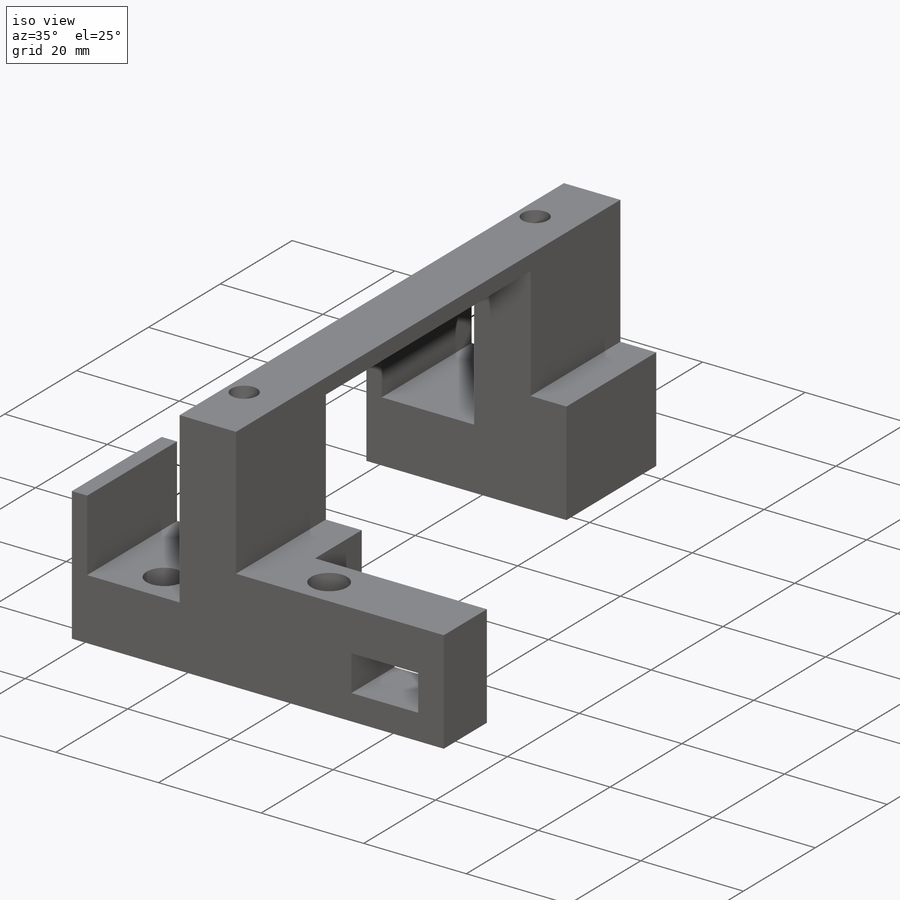
[diagram: iso view]
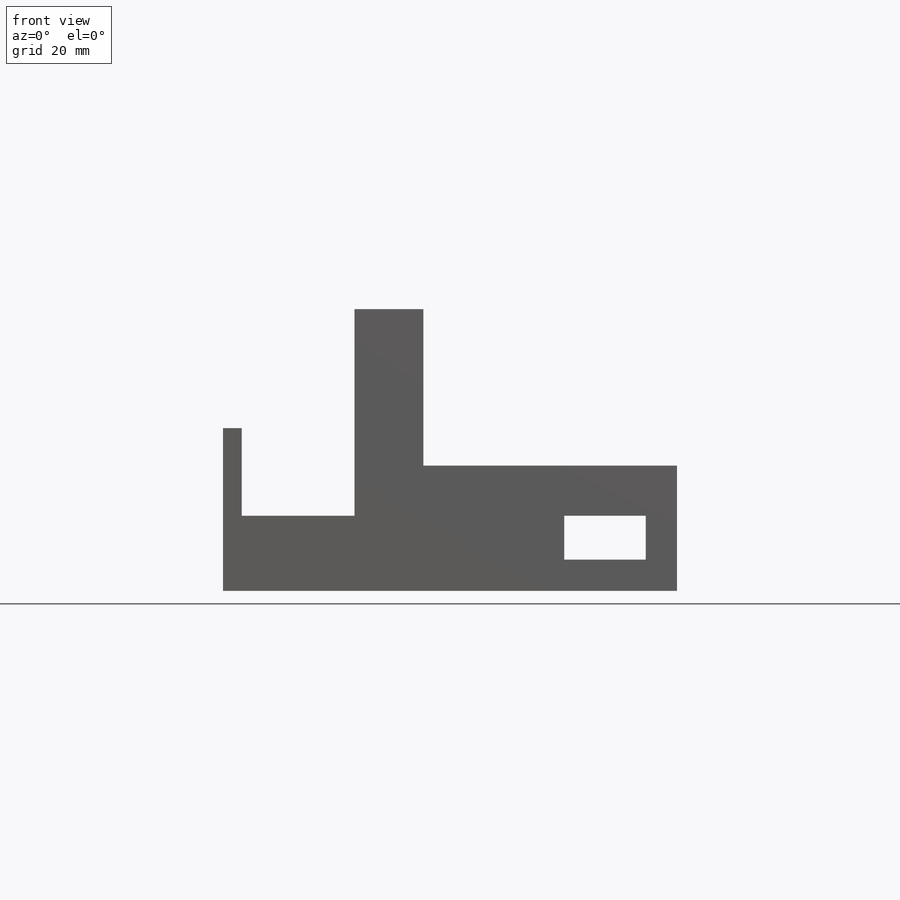
[diagram: front view]
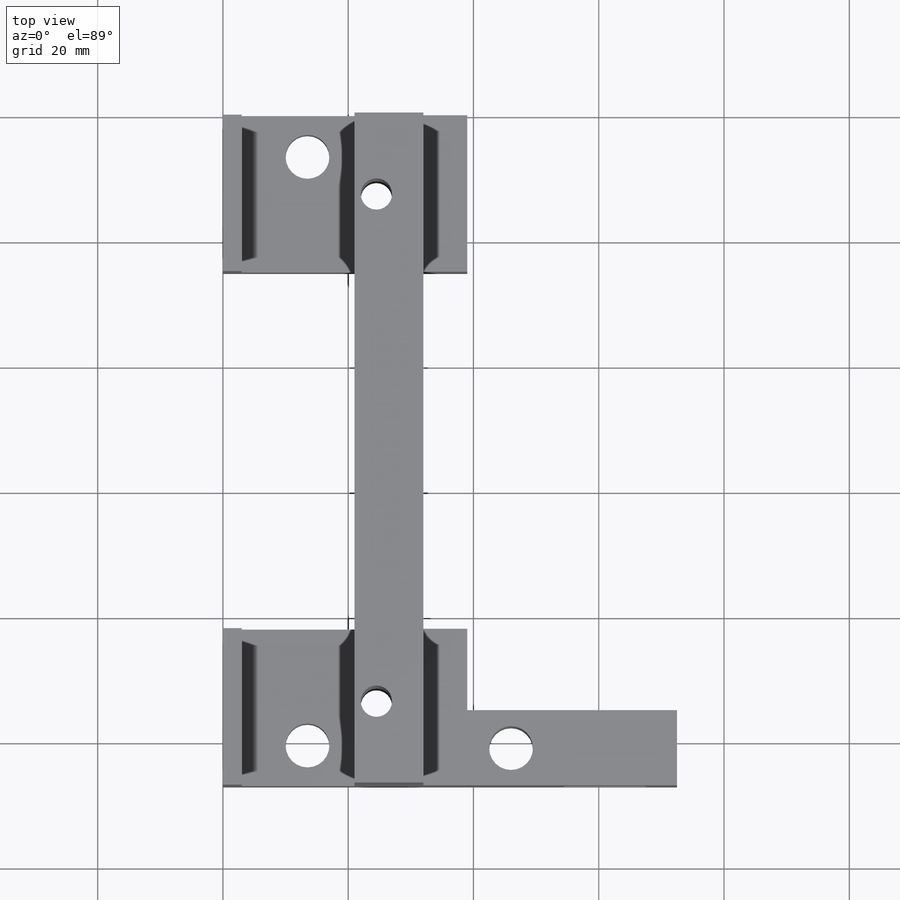
[diagram: top view]
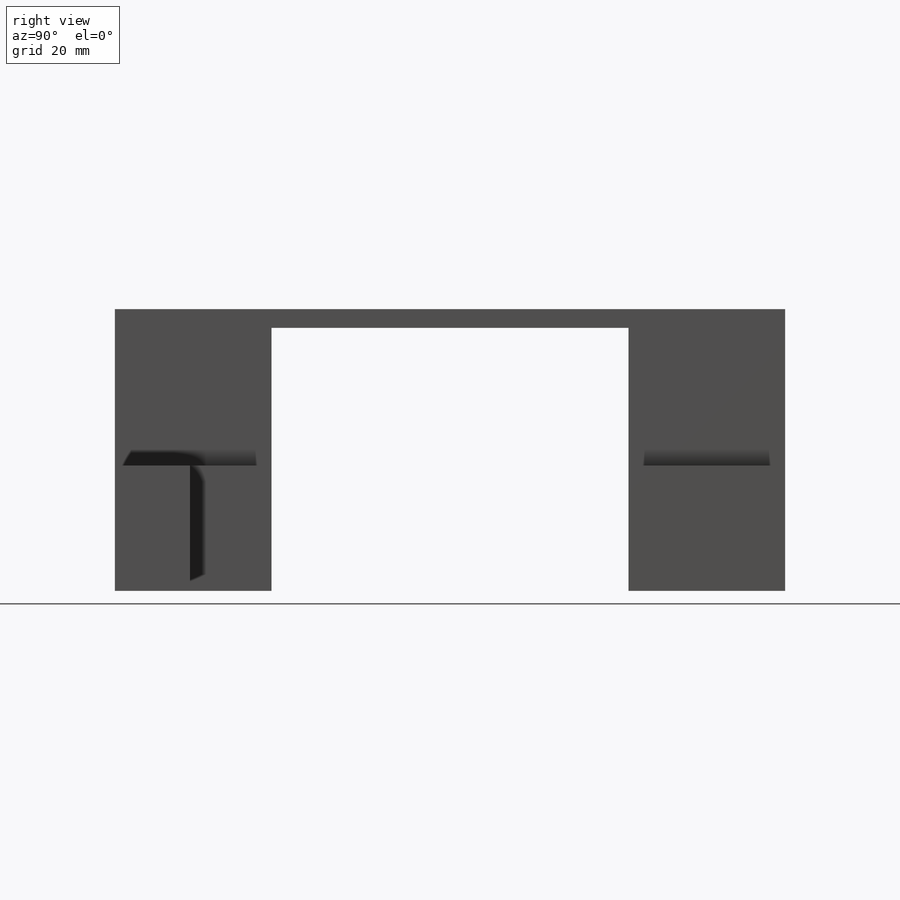
[diagram: right view]
SOLIDWORKS PART (.sldprt)
format: sldprt  version: not decoded by parser v0  size: 253,952 bytes
history: native  units: mm
features: sketch x7, cut_extrude x5, plane x3, extrude x2, material x1 (+10 scaffold rows collapsed)
feature tree (28):
  scaffold x10  (default folders/planes/origin — collapsed)
  material  "Material <sin especificar>"
  plane  "Alzado"
  plane  "Planta"
  plane  "Vista lateral"
  sketch  "Croquis1"  dims[c1.D1=39.0mm c1.D2=25.0mm c1.D3=50.0mm c1.D4=11.0mm c1.D5=3.0mm c1.D6=18.0mm c1.D7=35.0mm c1.D8=20.0mm c2.D3=12.0mm c2.D7=14.0mm]
  extrude  "Saliente-Extruir1"  Depth=107mm
  sketch  "Croquis3"  dims[D1=25.0mm D2=25.0mm D3=3.0mm]
  cut_extrude  "Cortar-Extruir1"  [1 undecoded]
  sketch  "Croquis2"  dims[c1.D1=~4.751391mm c1.D2=~4.330127mm c2.D1=5.0mm c2.D4=5.0mm c3.D1=5.0mm c3.D2=5.5mm c3.D3=5.0mm c3.D4=5.5mm c3.D5=7.5mm c3.D6=7.5mm c4.D5=2.83mm c4.D6=2.83mm c4.D2=13.0mm c4.D3=~13.194203mm c5.D3=90.0deg c6.D3=3.5mm c6.D5=3.5mm c6.D6=13.0mm c6.D7=81.0mm]
  cut_extrude  "Cortar-Extruir2"  [1 undecoded]
  sketch  "Croquis4"  dims[c1.D1=7.0mm c1.D4=7.0mm c1.D6=7.0mm c1.D2=6.5mm c1.D3=7.5mm c1.D5=6.5mm c2.D6=7.5mm]
  cut_extrude  "Cortar-Extruir3"  [1 undecoded]
  sketch  "Croquis5"  dims[D1=12.0mm]
  extrude  "Saliente-Extruir2"  Depth=33.5mm
  sketch  "Croquis7"  dims[D1=7.0mm D2=7.0mm]
  cut_extrude  "Cortar-Extruir4"  [1 undecoded]
  sketch  "Croquis8"  dims[c1.D1=5.0mm c1.D2=13.0mm c1.D3=7.0mm c1.D4=5.0mm c1.D5=13.0mm c2.D5=90.0deg c3.D5=7.0mm]
  cut_extrude  "Cortar-Extruir5"  [1 undecoded]
decode coverage: 9 of 14 modeling features carry decoded parameters
note: ~ marks probable driven/reference dimensions
note: 5 parameter values undecoded
summary: no parameter record found for 5 features
note: suppression state not decoded; provenance and decode notes live in map.json
